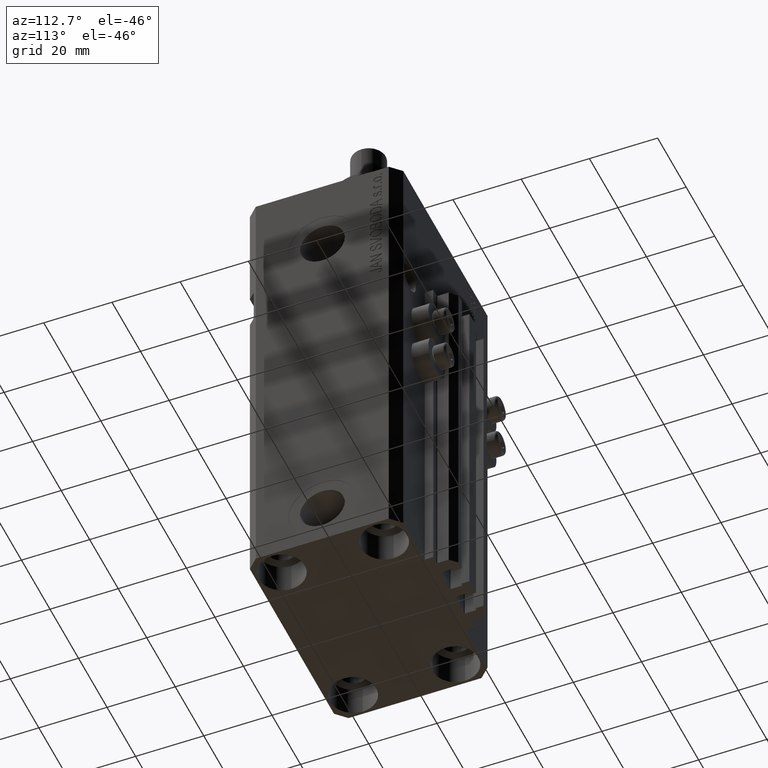
[diagram: clean part render]
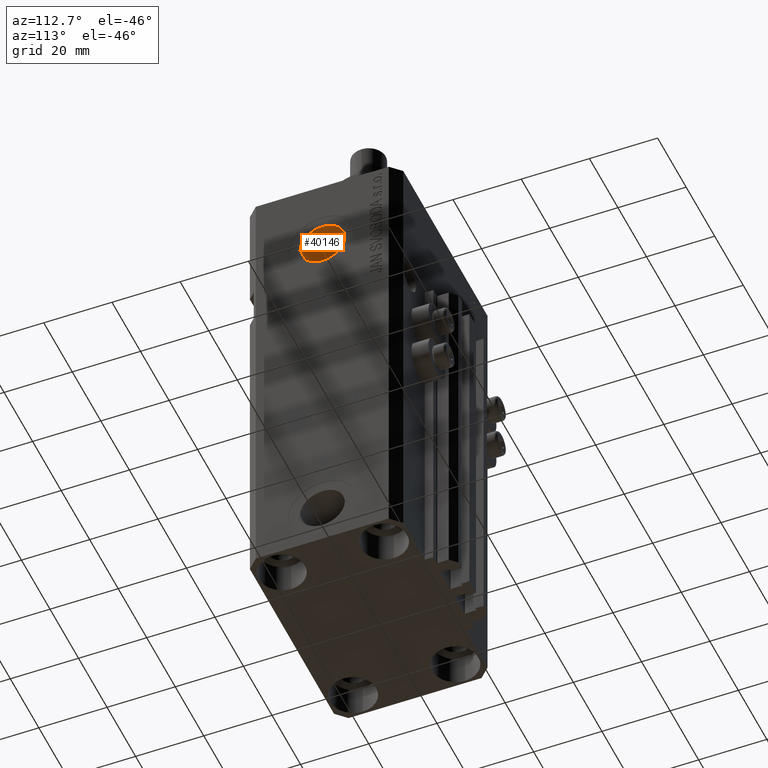
[diagram: same view with one face highlighted and labeled with its STEP entity id]
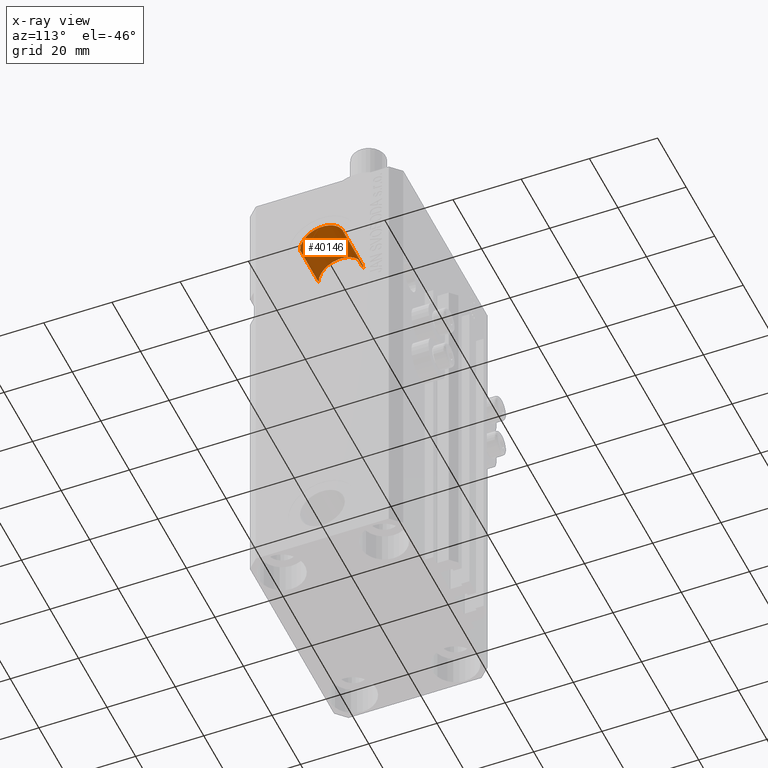
[diagram: x-ray of the same camera — body ghosted, the highlighted face saturated]
A machine part, auxiliary view. The second image highlights one B-rep face of the part: STEP entity #40146.
The next image is the same camera in x-ray: the body ghosted, the highlighted face saturated — about 0% of this face is hidden behind the body in this view.
In plain terms, the highlighted cylindrical surface (edge-blend (fillet) strip) has radius 6.58 mm, axis along (1, -0, 0).
Its self-contained STEP definition (entity closure, byte-faithful):
#5 = ORIENTED_EDGE ( 'NONE', *, *, #46440, .F. ) ;
#45 = CARTESIAN_POINT ( 'NONE',  ( 19.39999999999686153, 6.579999999999744276, -22.00000000000000000 ) ) ;
#528 = CARTESIAN_POINT ( 'NONE',  ( 32.39999999999668034, -6.580000000000433502, -22.00000000000000000 ) ) ;
#1662 = DIRECTION ( 'NONE',  ( 1.318178933113074700E-14, 1.000000000000000000, 0.000000000000000000 ) ) ;
#2315 = VERTEX_POINT ( 'NONE', #27774 ) ;
#3679 = VERTEX_POINT ( 'NONE', #528 ) ;
#5107 = CIRCLE ( 'NONE', #24993, 6.580000000000002736 ) ;
#7963 = DIRECTION ( 'NONE',  ( 1.000000000000000000, -1.334402673828349134E-14, 0.000000000000000000 ) ) ;
#9511 = ORIENTED_EDGE ( 'NONE', *, *, #43849, .F. ) ;
#10520 = CARTESIAN_POINT ( 'NONE',  ( 19.39999999999677271, -2.588741187226566333E-13, -22.00000000000000000 ) ) ;
#10693 = CIRCLE ( 'NONE', #38569, 6.580000000000002736 ) ;
#13967 = EDGE_LOOP ( 'NONE', ( #5, #9511, #46478, #21811 ) ) ;
#14787 = VECTOR ( 'NONE', #47700, 1000.000000000000000 ) ;
#15166 = LINE ( 'NONE', #25632, #24580 ) ;
#17535 = LINE ( 'NONE', #40468, #14787 ) ;
#20188 = VERTEX_POINT ( 'NONE', #44796 ) ;
#21722 = AXIS2_PLACEMENT_3D ( 'NONE', #10520, #25709, #1662 ) ;
#21811 = ORIENTED_EDGE ( 'NONE', *, *, #42700, .T. ) ;
#22390 = DIRECTION ( 'NONE',  ( 1.000000000000000000, -1.334402673828349292E-14, -0.000000000000000000 ) ) ;
#24580 = VECTOR ( 'NONE', #22390, 1000.000000000000000 ) ;
#24796 = CYLINDRICAL_SURFACE ( 'NONE', #21722, 6.580000000000002736 ) ;
#24993 = AXIS2_PLACEMENT_3D ( 'NONE', #34622, #7963, #38614 ) ;
#25595 = CARTESIAN_POINT ( 'NONE',  ( 19.39999999999677271, -2.588741187226566333E-13, -22.00000000000000000 ) ) ;
#25632 = CARTESIAN_POINT ( 'NONE',  ( 19.39999999999686153, 6.579999999999744276, -22.00000000000000000 ) ) ;
#25709 = DIRECTION ( 'NONE',  ( 1.000000000000000000, -1.334402673828349292E-14, -0.000000000000000000 ) ) ;
#27774 = CARTESIAN_POINT ( 'NONE',  ( 19.39999999999668745, -6.580000000000261196, -22.00000000000000000 ) ) ;
#28277 = EDGE_CURVE ( 'NONE', #47878, #20188, #15166, .T. ) ;
#28803 = FACE_OUTER_BOUND ( 'NONE', #13967, .T. ) ;
#34622 = CARTESIAN_POINT ( 'NONE',  ( 32.39999999999677271, -4.323464663203420381E-13, -22.00000000000000000 ) ) ;
#38569 = AXIS2_PLACEMENT_3D ( 'NONE', #25595, #45037, #40815 ) ;
#38614 = DIRECTION ( 'NONE',  ( 1.370906090437597808E-14, 1.000000000000000000, 0.000000000000000000 ) ) ;
#40146 = ADVANCED_FACE ( 'NONE', ( #28803 ), #24796, .F. ) ;
#40468 = CARTESIAN_POINT ( 'NONE',  ( 19.39999999999668745, -6.580000000000261196, -22.00000000000000000 ) ) ;
#40815 = DIRECTION ( 'NONE',  ( 1.318178933113074700E-14, 1.000000000000000000, 0.000000000000000000 ) ) ;
#42700 = EDGE_CURVE ( 'NONE', #20188, #3679, #5107, .T. ) ;
#43849 = EDGE_CURVE ( 'NONE', #47878, #2315, #10693, .T. ) ;
#44796 = CARTESIAN_POINT ( 'NONE',  ( 32.39999999999686509, 6.579999999999570193, -22.00000000000000000 ) ) ;
#45037 = DIRECTION ( 'NONE',  ( 1.000000000000000000, -1.334402673828349134E-14, 0.000000000000000000 ) ) ;
#46440 = EDGE_CURVE ( 'NONE', #2315, #3679, #17535, .T. ) ;
#46478 = ORIENTED_EDGE ( 'NONE', *, *, #28277, .T. ) ;
#47700 = DIRECTION ( 'NONE',  ( 1.000000000000000000, -1.334402673828349292E-14, -0.000000000000000000 ) ) ;
#47878 = VERTEX_POINT ( 'NONE', #45 ) ;